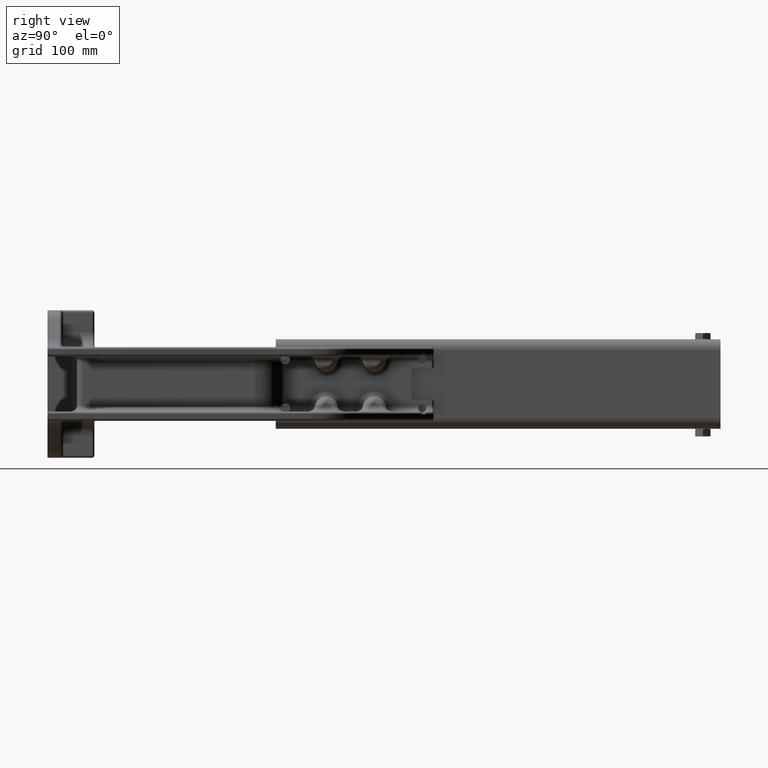
[diagram: clean part render]
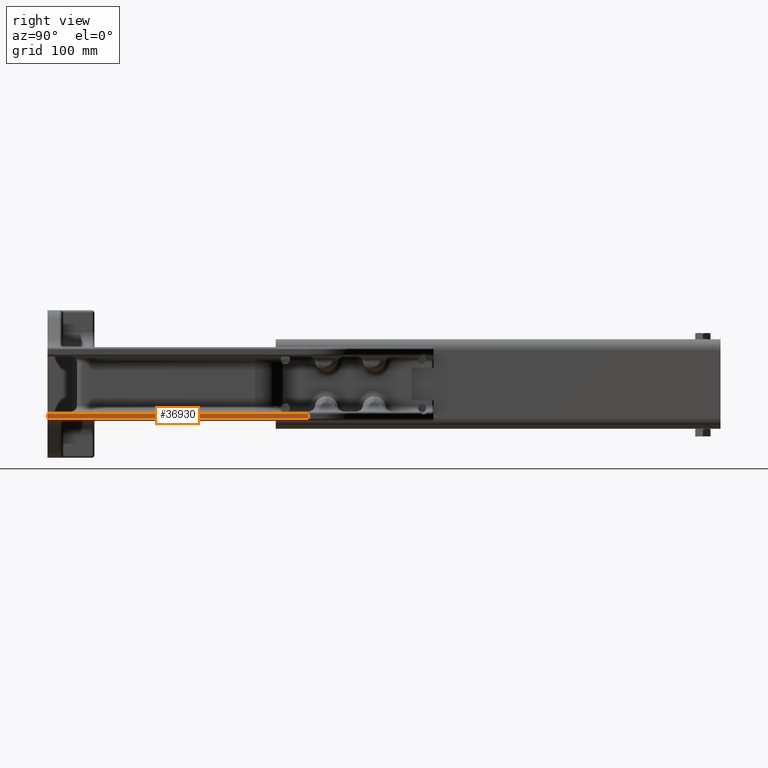
[diagram: same view with one face highlighted and labeled with its STEP entity id]
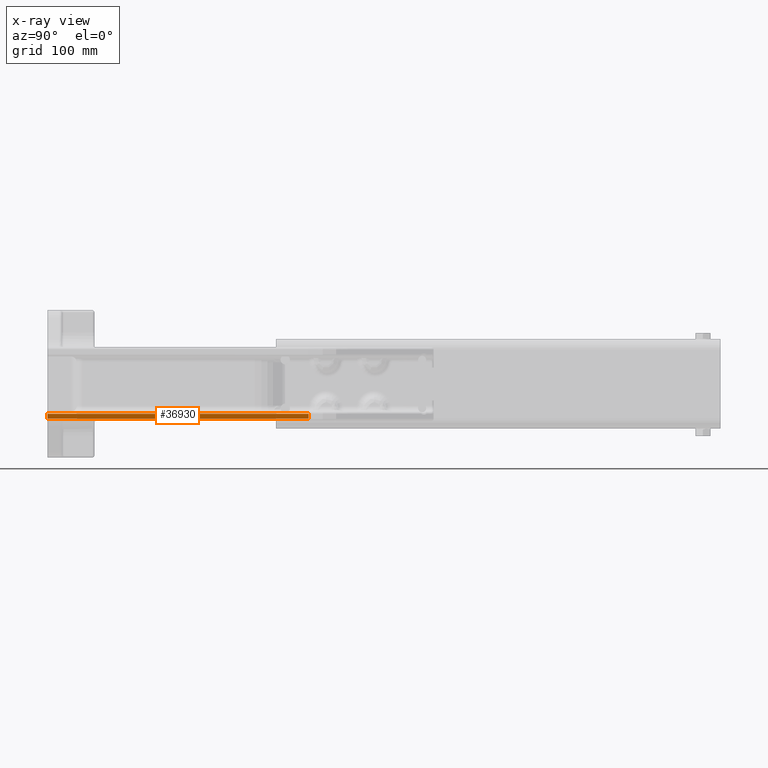
[diagram: x-ray of the same camera — body ghosted, the highlighted face saturated]
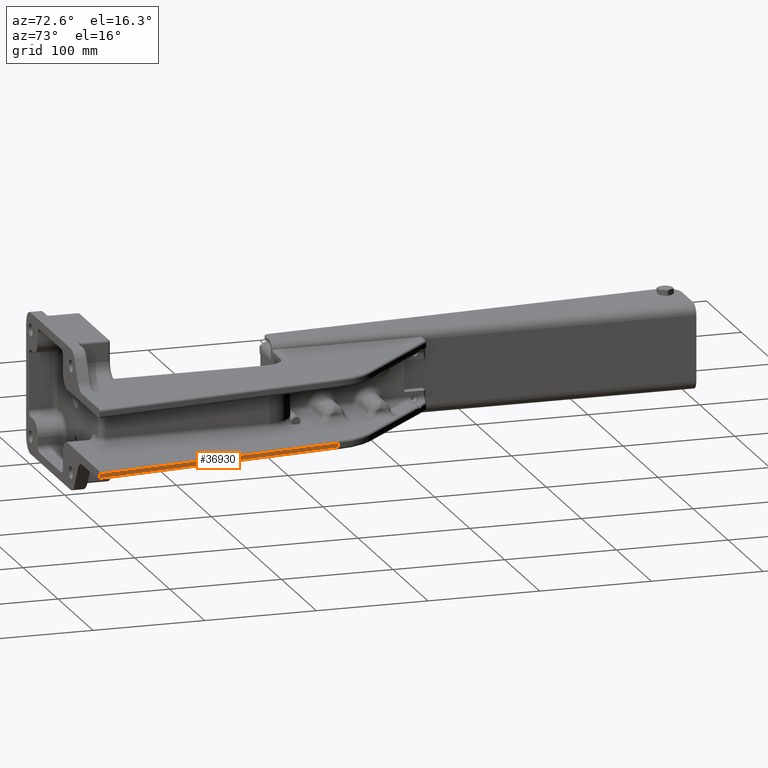
[diagram: same view with one face highlighted and labeled with its STEP entity id]
A machine part, right view. The second image highlights one B-rep face of the part: STEP entity #36930.
The next image is the same camera in x-ray: the body ghosted, the highlighted face saturated — about 0% of this face is hidden behind the body in this view.
A second angle (auxiliary view) of the same face is appended — the face is thin or edge-on in the first view.
In plain terms, the highlighted planar face has unit normal (0.9919, 0.1268, 0).
Its self-contained STEP definition (entity closure, byte-faithful):
#1380 = ORIENTED_EDGE ( 'NONE', *, *, #11685, .F. ) ;
#2812 = CARTESIAN_POINT ( 'NONE',  ( -28.51350157466511700, 222.9909004941902400, -27.50000000000010700 ) ) ;
#3719 = CARTESIAN_POINT ( 'NONE',  ( -14.26188814762232900, 111.5356271644816700, -25.50000000000010300 ) ) ;
#4065 = VERTEX_POINT ( 'NONE', #42479 ) ;
#5199 = VECTOR ( 'NONE', #11190, 1000.000000000000000 ) ;
#11190 = DIRECTION ( 'NONE',  ( 0.0000000000000000000, 0.0000000000000000000, 1.000000000000000000 ) ) ;
#11448 = ORIENTED_EDGE ( 'NONE', *, *, #52997, .F. ) ;
#11685 = EDGE_CURVE ( 'NONE', #44077, #4065, #32836, .T. ) ;
#12355 = VECTOR ( 'NONE', #49212, 1000.000000000000200 ) ;
#13891 = EDGE_CURVE ( 'NONE', #19555, #43096, #16233, .T. ) ;
#16233 = LINE ( 'NONE', #2812, #5199 ) ;
#18026 = FACE_OUTER_BOUND ( 'NONE', #18259, .T. ) ;
#18259 = EDGE_LOOP ( 'NONE', ( #1380, #11448, #42455, #23170 ) ) ;
#19555 = VERTEX_POINT ( 'NONE', #49563 ) ;
#19841 = CARTESIAN_POINT ( 'NONE',  ( -1.532194510156514900E-011, -1.099317548356860600E-014, -29.50000000000011400 ) ) ;
#22534 = DIRECTION ( 'NONE',  ( 0.9919237327547938400, 0.1268357536256884100, -0.0000000000000000000 ) ) ;
#23170 = ORIENTED_EDGE ( 'NONE', *, *, #40862, .F. ) ;
#24730 = LINE ( 'NONE', #32363, #12355 ) ;
#25577 = DIRECTION ( 'NONE',  ( 0.0000000000000000000, 0.0000000000000000000, 1.000000000000000000 ) ) ;
#28656 = DIRECTION ( 'NONE',  ( -0.1268357536256881100, 0.9919237327547938400, 0.0000000000000000000 ) ) ;
#31500 = VECTOR ( 'NONE', #25577, 1000.000000000000000 ) ;
#32363 = CARTESIAN_POINT ( 'NONE',  ( -14.26188814762232900, 111.5356271644816700, -29.50000000000011400 ) ) ;
#32836 = LINE ( 'NONE', #37992, #31500 ) ;
#36930 = ADVANCED_FACE ( 'NONE', ( #18026 ), #47395, .T. ) ;
#37992 = CARTESIAN_POINT ( 'NONE',  ( 0.0000000000000000000, 0.0000000000000000000, 0.0000000000000000000 ) ) ;
#40862 = EDGE_CURVE ( 'NONE', #4065, #43096, #41689, .T. ) ;
#41689 = LINE ( 'NONE', #3719, #51491 ) ;
#42455 = ORIENTED_EDGE ( 'NONE', *, *, #13891, .T. ) ;
#42479 = CARTESIAN_POINT ( 'NONE',  ( -1.092875789865388500E-013, -3.512179554762501100E-015, -25.50000000000010300 ) ) ;
#43096 = VERTEX_POINT ( 'NONE', #43352 ) ;
#43352 = CARTESIAN_POINT ( 'NONE',  ( -28.51350157466506700, 222.9909004941896200, -25.50000000000010300 ) ) ;
#44077 = VERTEX_POINT ( 'NONE', #19841 ) ;
#44790 = AXIS2_PLACEMENT_3D ( 'NONE', #47575, #22534, #51758 ) ;
#47395 = PLANE ( 'NONE',  #44790 ) ;
#47575 = CARTESIAN_POINT ( 'NONE',  ( 0.0000000000000000000, 0.0000000000000000000, -29.50000000000011400 ) ) ;
#49212 = DIRECTION ( 'NONE',  ( 0.1268357536256881100, -0.9919237327547938400, 0.0000000000000000000 ) ) ;
#49563 = CARTESIAN_POINT ( 'NONE',  ( -28.51350157466506000, 222.9909004941895900, -29.50000000000011700 ) ) ;
#51491 = VECTOR ( 'NONE', #28656, 1000.000000000000200 ) ;
#51758 = DIRECTION ( 'NONE',  ( -0.1268357536256884100, 0.9919237327547938400, 0.0000000000000000000 ) ) ;
#52997 = EDGE_CURVE ( 'NONE', #19555, #44077, #24730, .T. ) ;